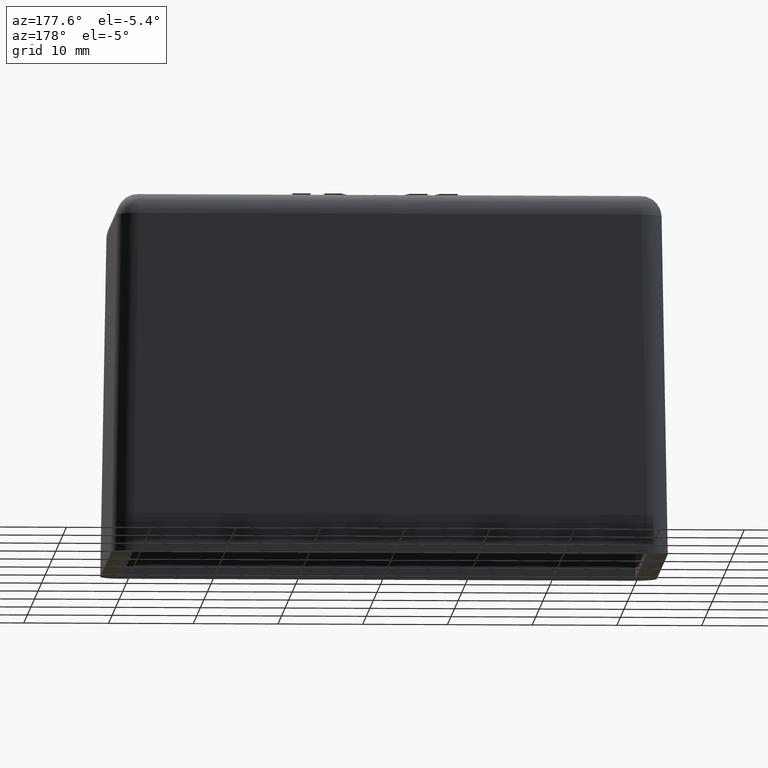
[diagram: clean part render]
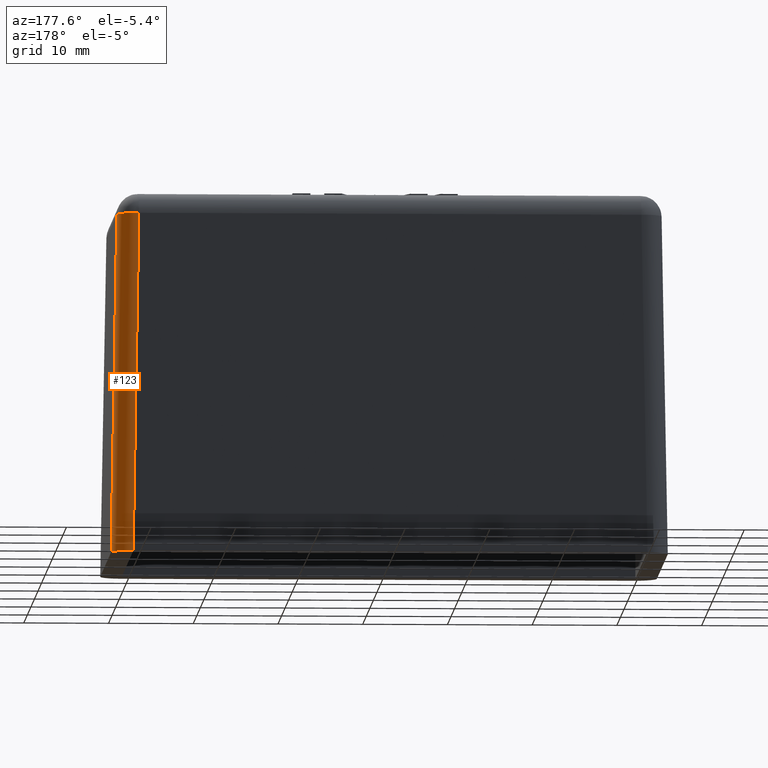
[diagram: same view with one face highlighted and labeled with its STEP entity id]
A machine part, auxiliary view. The second image highlights one B-rep face of the part: STEP entity #123.
In plain terms, the highlighted cylindrical surface (edge-blend (fillet) strip) has radius 2.5 mm, axis along (-0.0174, -0.0174, 0.9997).
Its self-contained STEP definition (entity closure, byte-faithful):
#123 = ADVANCED_FACE( '', ( #300 ), #301, .T. );
#300 = FACE_OUTER_BOUND( '', #545, .T. );
#301 = CYLINDRICAL_SURFACE( '', #546, 2.50000000000000 );
#545 = EDGE_LOOP( '', ( #1161, #1162, #1163, #1164 ) );
#546 = AXIS2_PLACEMENT_3D( '', #1165, #1166, #1167 );
#1161 = ORIENTED_EDGE( '', *, *, #1741, .F. );
#1162 = ORIENTED_EDGE( '', *, *, #1789, .F. );
#1163 = ORIENTED_EDGE( '', *, *, #1784, .F. );
#1164 = ORIENTED_EDGE( '', *, *, #1790, .F. );
#1165 = CARTESIAN_POINT( '', ( 29.9813497870587, 14.9813497870587, 21.0466528143374 ) );
#1166 = DIRECTION( '', ( -0.0174497491606827, -0.0174497491606827, 0.999695459881888 ) );
#1167 = DIRECTION( '', ( -0.999847695156391, 0.000000000000000, -0.0174524064372835 ) );
#1741 = EDGE_CURVE( '', #2089, #2091, #2092, .F. );
#1784 = EDGE_CURVE( '', #2158, #2150, #2160, .T. );
#1789 = EDGE_CURVE( '', #2150, #2089, #2166, .F. );
#1790 = EDGE_CURVE( '', #2091, #2158, #2167, .T. );
#2089 = VERTEX_POINT( '', #2901 );
#2091 = VERTEX_POINT( '', #2904 );
#2092 = ELLIPSE( '', #2905, 2.50076158222762, 2.50000000000000 );
#2150 = VERTEX_POINT( '', #3011 );
#2158 = VERTEX_POINT( '', #3021 );
#2160 = CIRCLE( '', #3023, 2.50000000000000 );
#2166 = LINE( '', #3031, #3032 );
#2167 = LINE( '', #3033, #3034 );
#2901 = CARTESIAN_POINT( '', ( 30.3494820606734, 17.8491012985643, 6.93889390390723E-015 ) );
#2904 = CARTESIAN_POINT( '', ( 32.8491012985644, 15.3494820606734, 6.93889390390723E-015 ) );
#2905 = AXIS2_PLACEMENT_3D( '', #3317, #3318, #3319 );
#3011 = CARTESIAN_POINT( '', ( 29.6505178813259, 17.1501371192169, 40.0436310160932 ) );
#3021 = CARTESIAN_POINT( '', ( 32.1501371192169, 14.6505178813259, 40.0436310160932 ) );
#3023 = AXIS2_PLACEMENT_3D( '', #3360, #3361, #3362 );
#3031 = CARTESIAN_POINT( '', ( 29.9813497870587, 17.4809690249496, 21.0902838304306 ) );
#3032 = VECTOR( '', #3371, 1000.00000000000 );
#3033 = CARTESIAN_POINT( '', ( 32.4901038373228, 14.9904845994318, 20.5669507800703 ) );
#3034 = VECTOR( '', #3372, 1000.00000000000 );
#3317 = CARTESIAN_POINT( '', ( 30.3487204784546, 15.3487204784546, 6.93889390390723E-015 ) );
#3318 = DIRECTION( '', ( 0.000000000000000, 0.000000000000000, 1.00000000000000 ) );
#3319 = DIRECTION( '', ( 0.707106781186548, 0.707106781186548, 0.000000000000000 ) );
#3360 = CARTESIAN_POINT( '', ( 29.6505178813259, 14.6505178813259, 40.0000000000000 ) );
#3361 = DIRECTION( '', ( -0.0174497491606827, -0.0174497491606827, 0.999695459881888 ) );
#3362 = DIRECTION( '', ( 0.999847695156391, 0.000000000000000, 0.0174524064372836 ) );
#3371 = DIRECTION( '', ( -0.0174497491606827, -0.0174497491606827, 0.999695459881887 ) );
#3372 = DIRECTION( '', ( -0.0174497491606827, -0.0174497491606827, 0.999695459881887 ) );